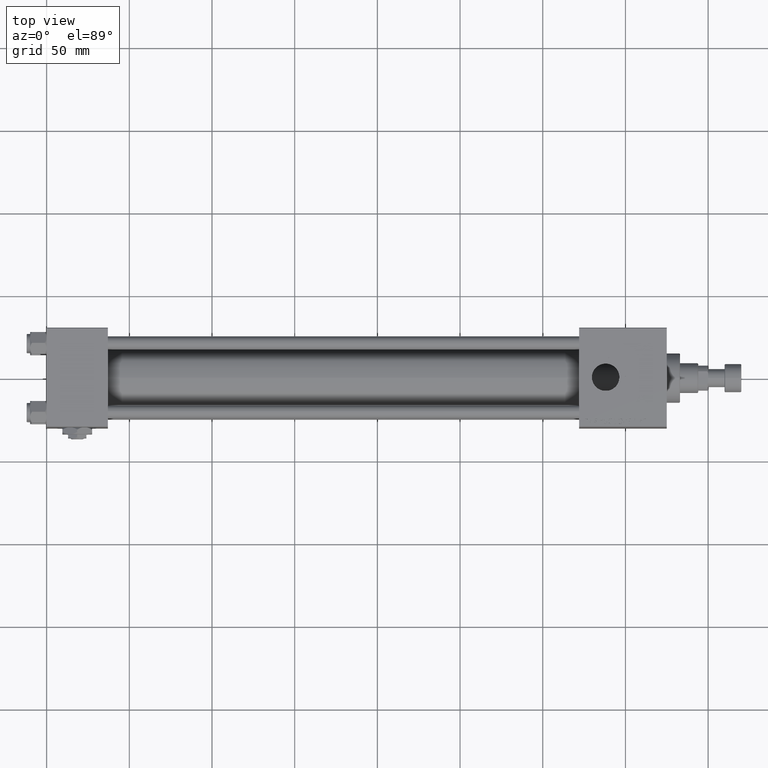
[diagram: clean part render]
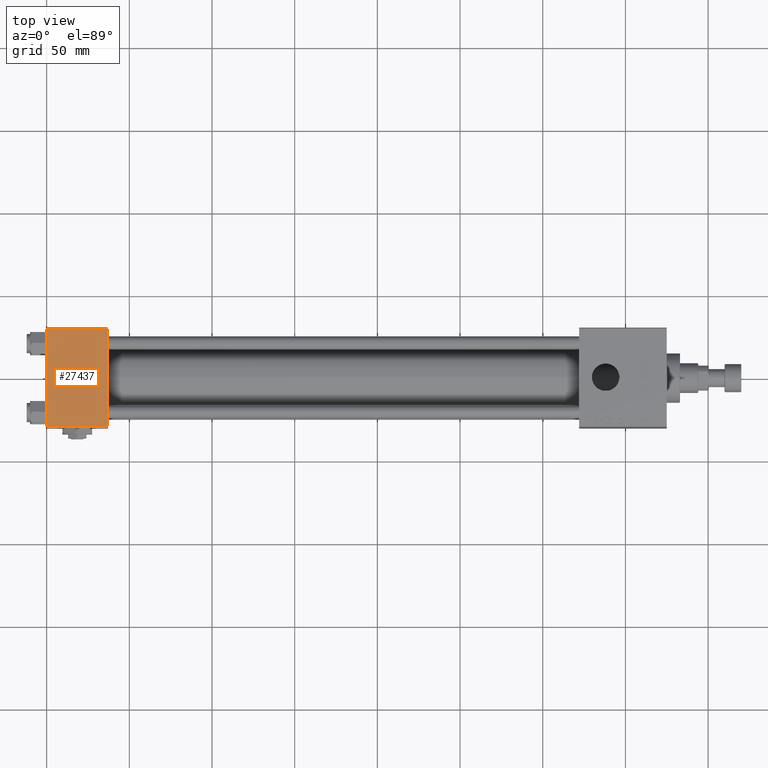
[diagram: same view with one face highlighted and labeled with its STEP entity id]
A machine part, top view. The second image highlights one B-rep face of the part: STEP entity #27437.
In plain terms, the highlighted planar face has unit normal (0, 0, -1).
Its self-contained STEP definition (entity closure, byte-faithful):
#94 = CARTESIAN_POINT ( 'NONE',  ( 0.000000000000000000, 29.49999999999999289, 30.00000000000000000 ) ) ;
#3579 = VECTOR ( 'NONE', #10521, 1000.000000000000000 ) ;
#4049 = VERTEX_POINT ( 'NONE', #6988 ) ;
#4963 = CARTESIAN_POINT ( 'NONE',  ( 0.000000000000000000, 29.99999999999999289, 30.00000000000000000 ) ) ;
#5496 = CARTESIAN_POINT ( 'NONE',  ( 0.000000000000000000, -29.49999999999998579, 29.99999999999999289 ) ) ;
#6607 = EDGE_CURVE ( 'NONE', #4049, #29542, #12074, .T. ) ;
#6709 = LINE ( 'NONE', #47699, #37835 ) ;
#6988 = CARTESIAN_POINT ( 'NONE',  ( 37.00000000000000000, 29.49999999999999289, 30.00000000000000000 ) ) ;
#10521 = DIRECTION ( 'NONE',  ( 1.000000000000000000, 0.000000000000000000, 0.000000000000000000 ) ) ;
#12074 = LINE ( 'NONE', #94, #48288 ) ;
#12332 = DIRECTION ( 'NONE',  ( -1.000000000000000000, 0.000000000000000000, 0.000000000000000000 ) ) ;
#14927 = VERTEX_POINT ( 'NONE', #5496 ) ;
#16678 = ORIENTED_EDGE ( 'NONE', *, *, #49996, .T. ) ;
#16932 = DIRECTION ( 'NONE',  ( 0.000000000000000000, -1.000000000000000000, -1.156482317317871725E-16 ) ) ;
#20816 = EDGE_LOOP ( 'NONE', ( #34520, #16678, #46526, #24339 ) ) ;
#21103 = FACE_OUTER_BOUND ( 'NONE', #20816, .T. ) ;
#21345 = VECTOR ( 'NONE', #16932, 1000.000000000000000 ) ;
#24339 = ORIENTED_EDGE ( 'NONE', *, *, #6607, .T. ) ;
#24578 = AXIS2_PLACEMENT_3D ( 'NONE', #28786, #45049, #40777 ) ;
#26378 = DIRECTION ( 'NONE',  ( 0.000000000000000000, -1.000000000000000000, -1.156482317317871725E-16 ) ) ;
#26731 = LINE ( 'NONE', #38958, #3579 ) ;
#27437 = ADVANCED_FACE ( 'NONE', ( #21103 ), #37311, .F. ) ;
#28786 = CARTESIAN_POINT ( 'NONE',  ( 37.00000000000000000, 29.99999999999999289, 30.00000000000000000 ) ) ;
#29542 = VERTEX_POINT ( 'NONE', #33876 ) ;
#33876 = CARTESIAN_POINT ( 'NONE',  ( 0.000000000000000000, 29.49999999999999289, 30.00000000000000000 ) ) ;
#34520 = ORIENTED_EDGE ( 'NONE', *, *, #35975, .T. ) ;
#34901 = CARTESIAN_POINT ( 'NONE',  ( 37.00000000000000000, -29.49999999999998579, 29.99999999999999289 ) ) ;
#35559 = VERTEX_POINT ( 'NONE', #34901 ) ;
#35975 = EDGE_CURVE ( 'NONE', #29542, #14927, #49408, .T. ) ;
#37311 = PLANE ( 'NONE',  #24578 ) ;
#37835 = VECTOR ( 'NONE', #26378, 1000.000000000000000 ) ;
#38958 = CARTESIAN_POINT ( 'NONE',  ( 37.00000000000000000, -29.50000000000000000, 29.99999999999999289 ) ) ;
#40777 = DIRECTION ( 'NONE',  ( 0.000000000000000000, 1.000000000000000000, 1.156482317317871725E-16 ) ) ;
#45049 = DIRECTION ( 'NONE',  ( 0.000000000000000000, 1.156482317317871725E-16, -1.000000000000000000 ) ) ;
#45703 = EDGE_CURVE ( 'NONE', #4049, #35559, #6709, .T. ) ;
#46526 = ORIENTED_EDGE ( 'NONE', *, *, #45703, .F. ) ;
#47699 = CARTESIAN_POINT ( 'NONE',  ( 37.00000000000000000, 29.99999999999999289, 30.00000000000000000 ) ) ;
#48288 = VECTOR ( 'NONE', #12332, 1000.000000000000000 ) ;
#49408 = LINE ( 'NONE', #4963, #21345 ) ;
#49996 = EDGE_CURVE ( 'NONE', #14927, #35559, #26731, .T. ) ;